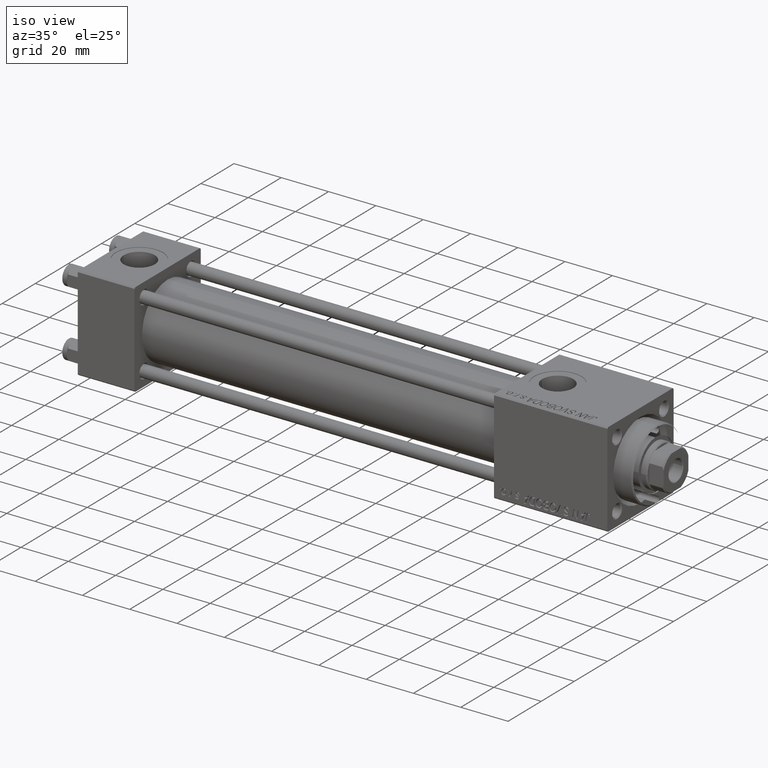
[diagram: clean part render]
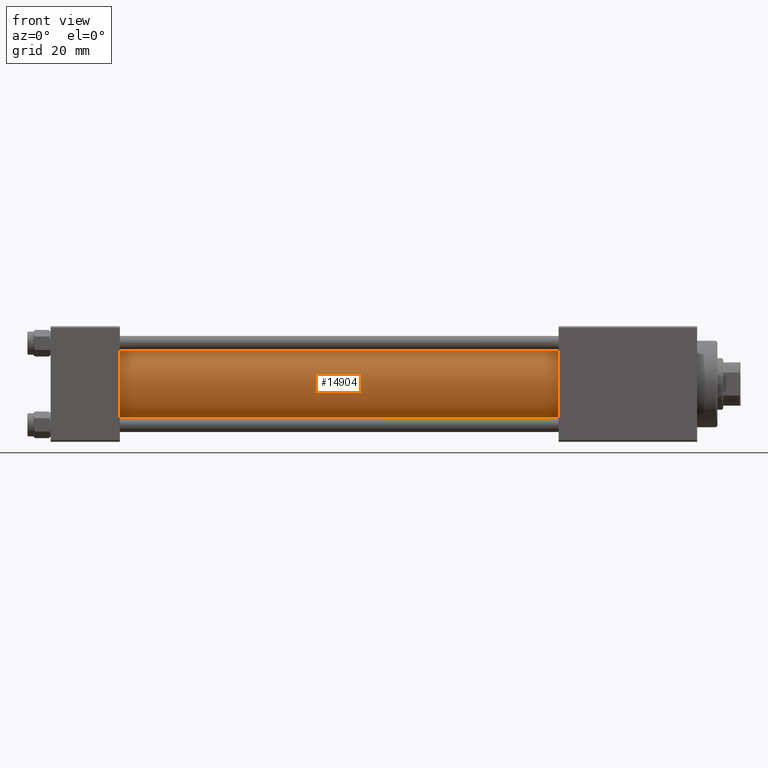
[diagram: tour spotlight — one face highlighted and labeled with its STEP entity id]
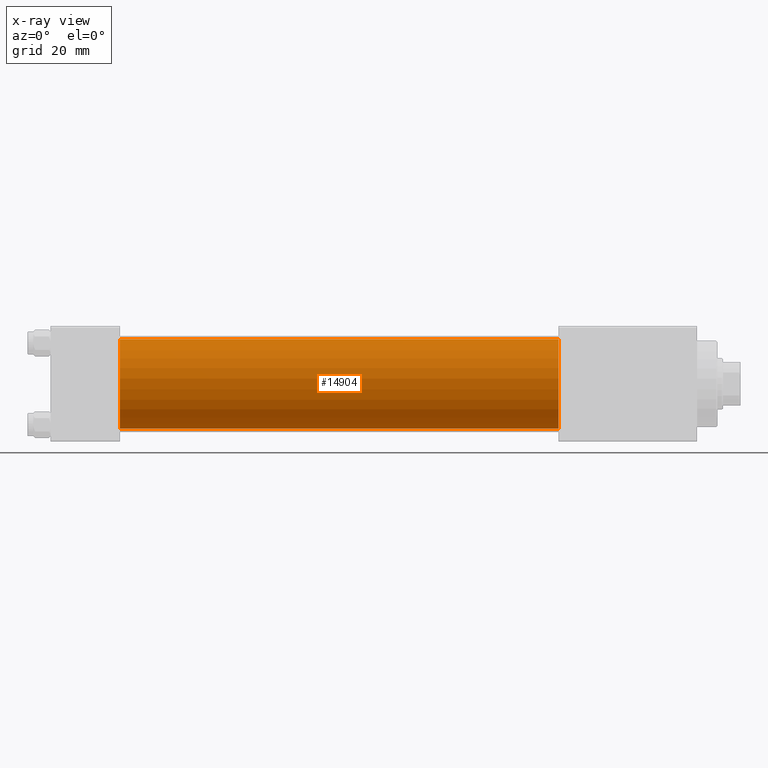
[diagram: x-ray of the same camera — body ghosted, this tour face saturated]
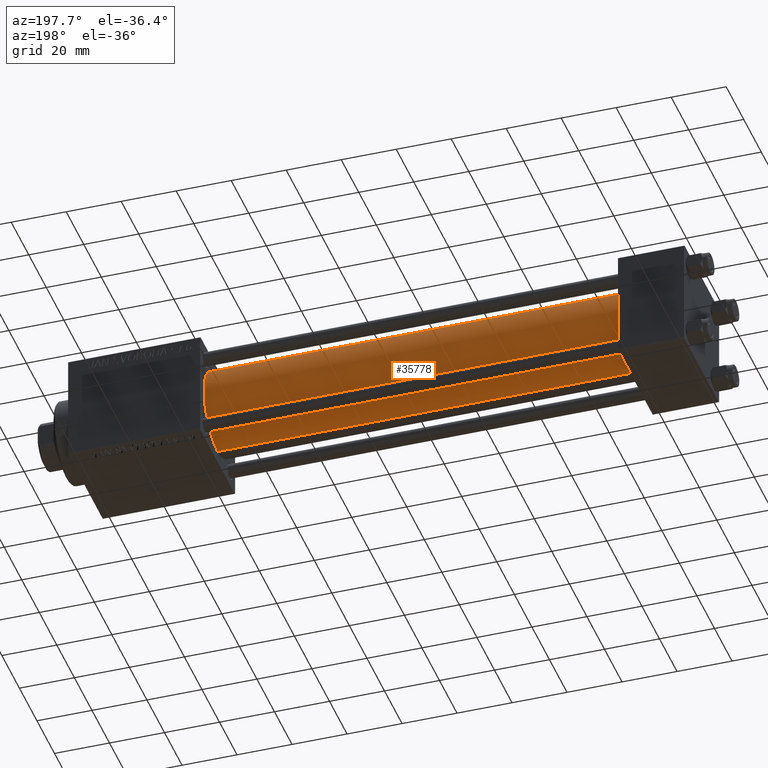
[diagram: tour spotlight — one face highlighted and labeled with its STEP entity id]
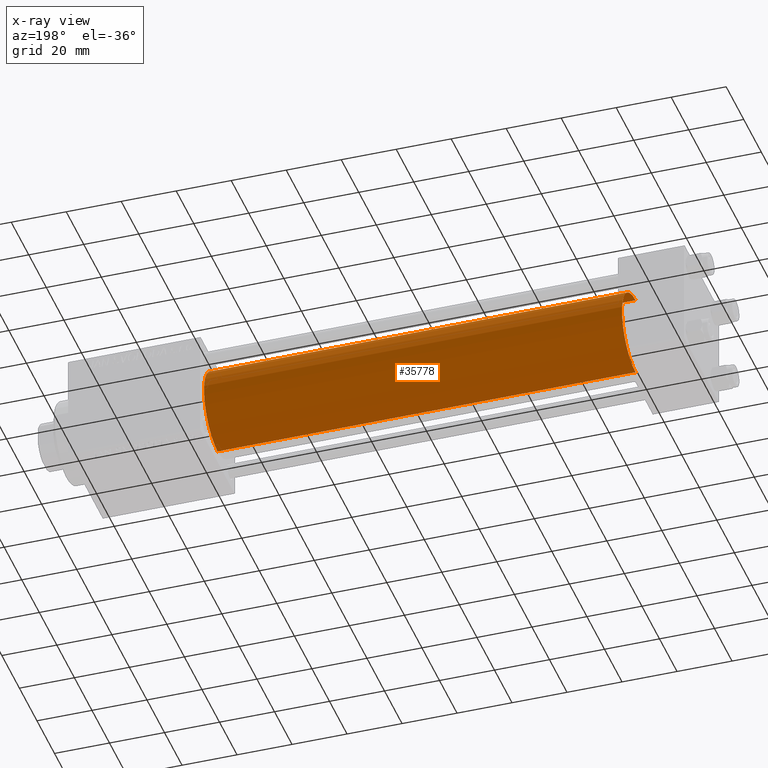
[diagram: x-ray of the same camera — body ghosted, this tour face saturated]
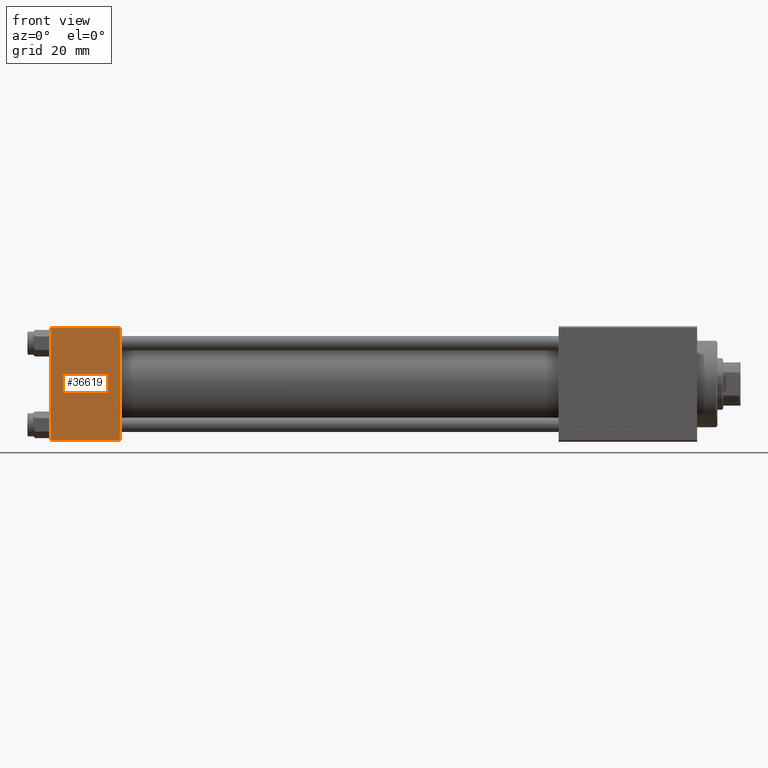
[diagram: tour spotlight — one face highlighted and labeled with its STEP entity id]
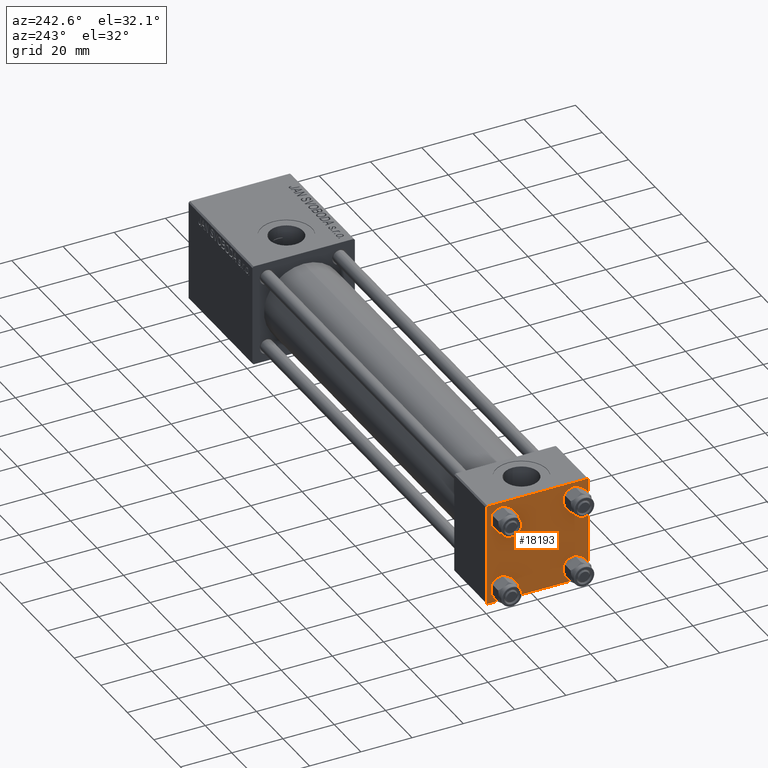
[diagram: tour spotlight — one face highlighted and labeled with its STEP entity id]
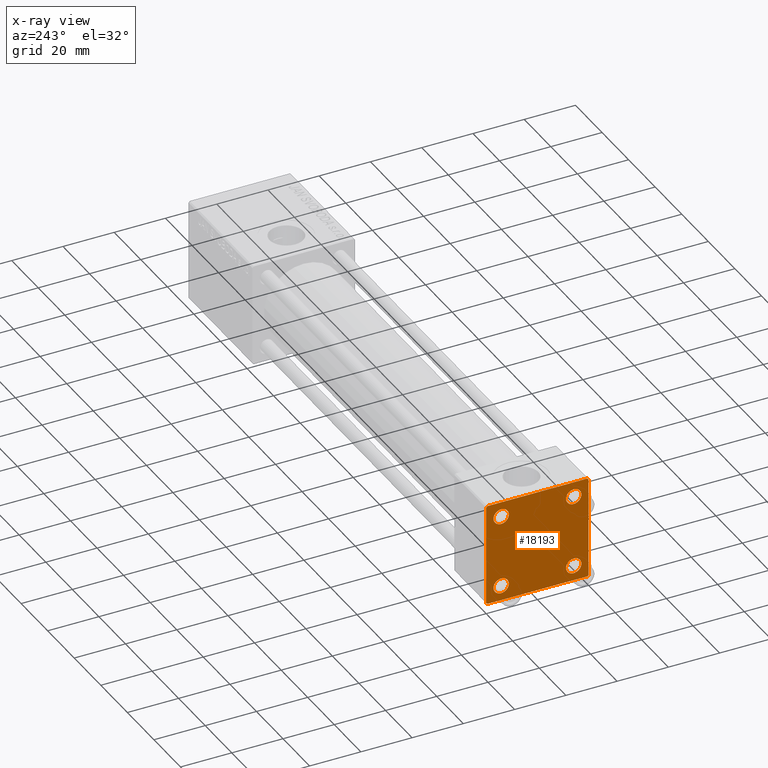
[diagram: x-ray of the same camera — body ghosted, this tour face saturated]
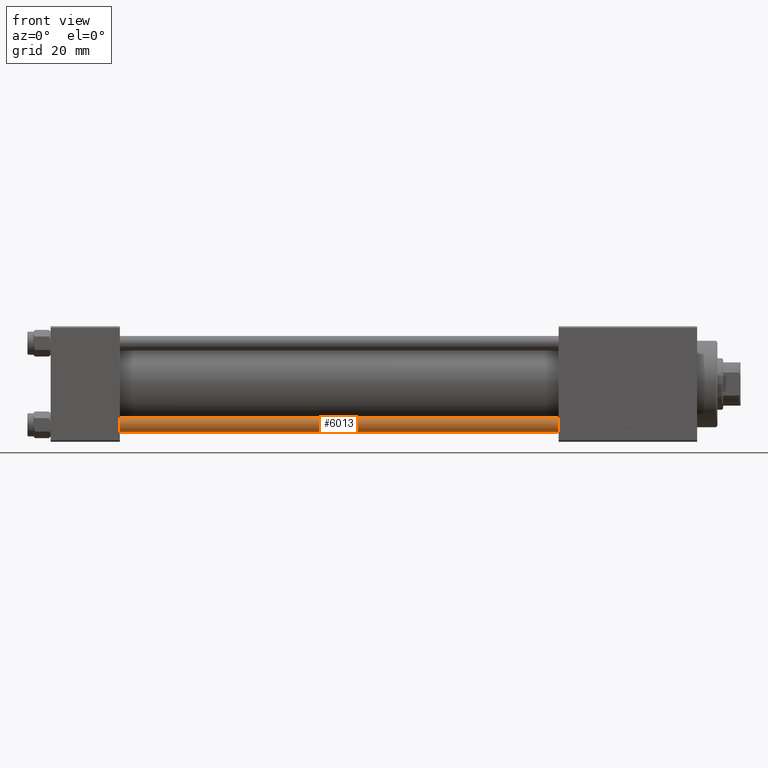
[diagram: tour spotlight — one face highlighted and labeled with its STEP entity id]
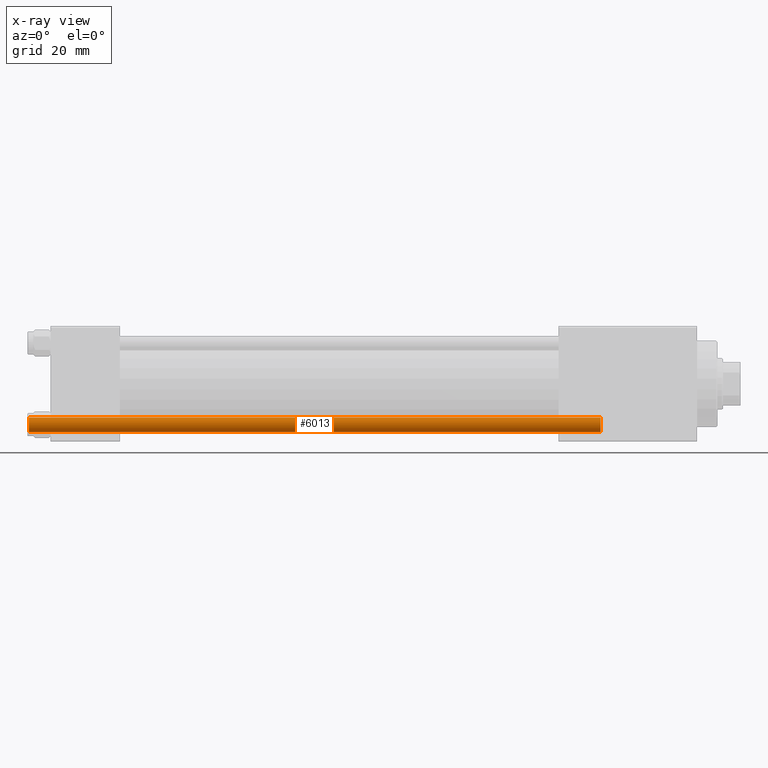
[diagram: x-ray of the same camera — body ghosted, this tour face saturated]
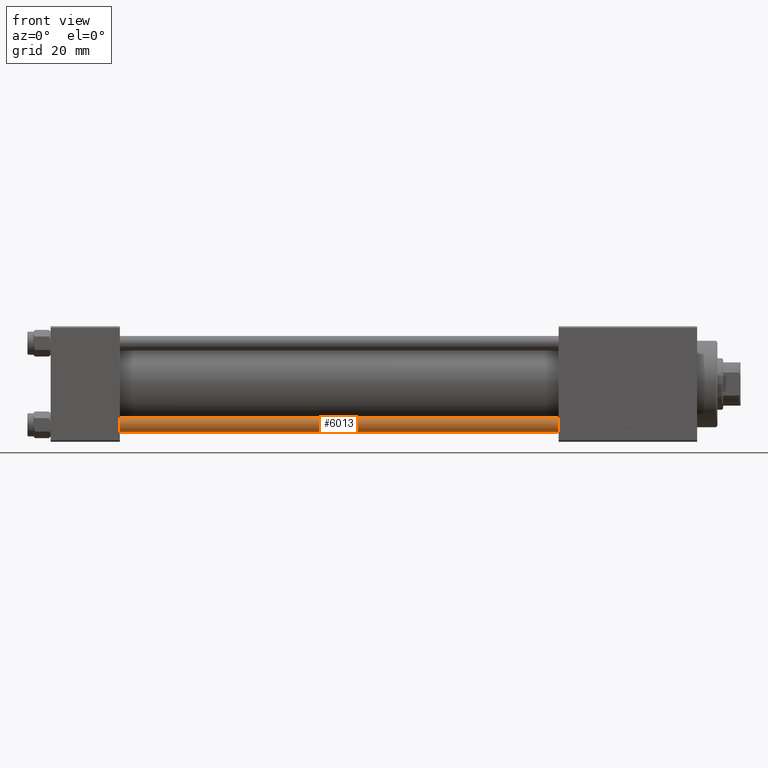
[diagram: tour spotlight — one face highlighted and labeled with its STEP entity id]
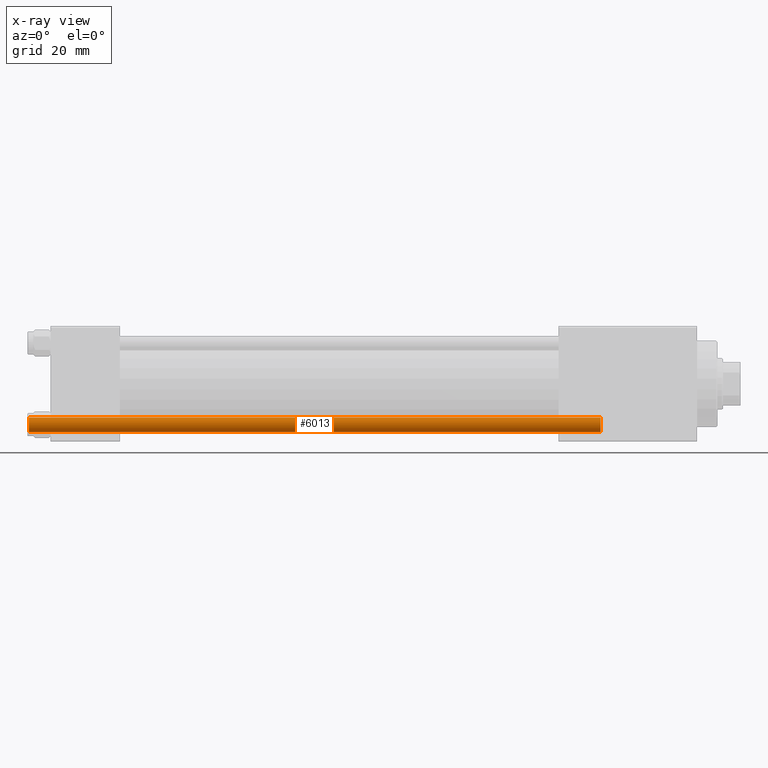
[diagram: x-ray of the same camera — body ghosted, this tour face saturated]
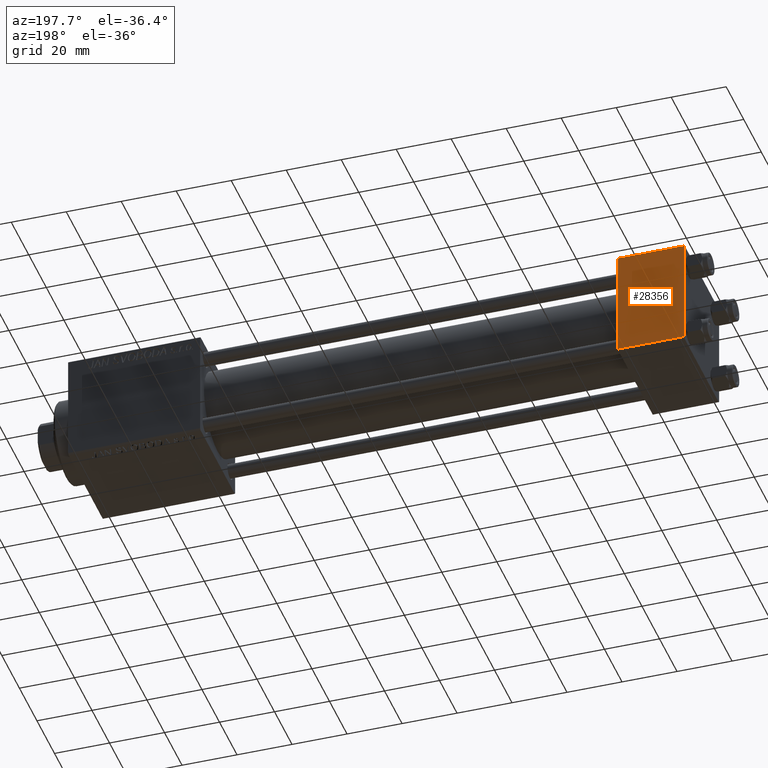
[diagram: tour spotlight — one face highlighted and labeled with its STEP entity id]
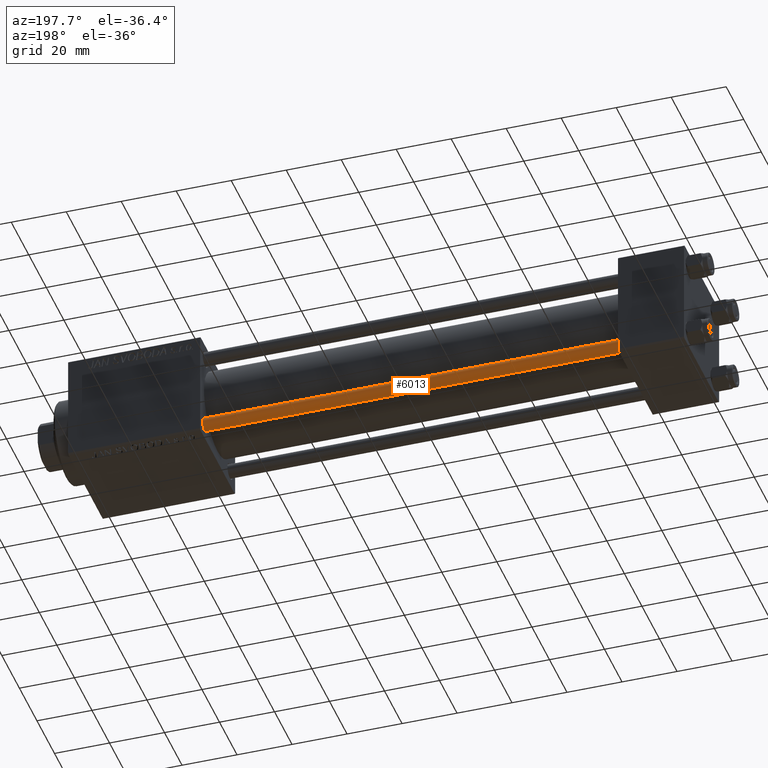
[diagram: tour spotlight — one face highlighted and labeled with its STEP entity id]
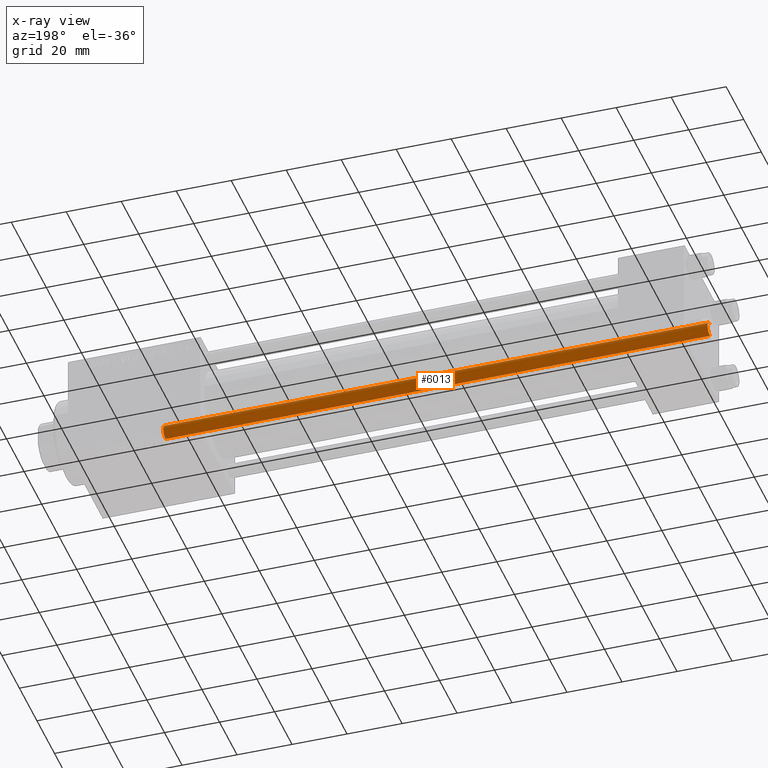
[diagram: x-ray of the same camera — body ghosted, this tour face saturated]
A machine part: a face-by-face anatomy tour. The part has 1150 B-rep faces; the first image is the clean iso view, then the 8 largest visible faces are spotlighted one at a time (largest first), each with its STEP entity span.

Face 1 — front view, entity #14904. An x-ray twin of the same camera follows (body ghosted, this face saturated) — the face is partly hidden behind the body. In plain terms, the highlighted cylindrical surface (partial cylindrical patch) has radius 15.5 mm, axis along (-1, -0, -0).
Definition (entity closure, byte-faithful):
#71 = VECTOR ( 'NONE', #28641, 1000.000000000000000 ) ;
#1972 = LINE ( 'NONE', #13160, #71 ) ;
#2523 = AXIS2_PLACEMENT_3D ( 'NONE', #50137, #49402, #45827 ) ;
#3264 = ORIENTED_EDGE ( 'NONE', *, *, #35896, .T. ) ;
#4370 = DIRECTION ( 'NONE',  ( 0.000000000000000000, 0.000000000000000000, -1.000000000000000000 ) ) ;
#5105 = VERTEX_POINT ( 'NONE', #21171 ) ;
#6144 = EDGE_LOOP ( 'NONE', ( #24814, #25381, #25191, #3264 ) ) ;
#7588 = CARTESIAN_POINT ( 'NONE',  ( 23.99999999999999289, -2.602085213965210642E-15, 0.000000000000000000 ) ) ;
#10615 = LINE ( 'NONE', #26110, #33172 ) ;
#13160 = CARTESIAN_POINT ( 'NONE',  ( 176.0000000000000000, -2.602085213965210642E-15, 15.50000000000000000 ) ) ;
#14904 = ADVANCED_FACE ( 'NONE', ( #38697 ), #30349, .T. ) ;
#16228 = AXIS2_PLACEMENT_3D ( 'NONE', #29434, #20122, #4370 ) ;
#17973 = CIRCLE ( 'NONE', #24449, 15.50000000000000000 ) ;
#20122 = DIRECTION ( 'NONE',  ( 1.000000000000000000, 0.000000000000000000, 0.000000000000000000 ) ) ;
#20661 = VERTEX_POINT ( 'NONE', #27658 ) ;
#20830 = VERTEX_POINT ( 'NONE', #38293 ) ;
#21171 = CARTESIAN_POINT ( 'NONE',  ( 23.99999999999999289, -2.602085213965210642E-15, 15.50000000000000000 ) ) ;
#24449 = AXIS2_PLACEMENT_3D ( 'NONE', #7588, #27646, #31716 ) ;
#24666 = EDGE_CURVE ( 'NONE', #46108, #20661, #10615, .T. ) ;
#24814 = ORIENTED_EDGE ( 'NONE', *, *, #24666, .F. ) ;
#25191 = ORIENTED_EDGE ( 'NONE', *, *, #35176, .T. ) ;
#25381 = ORIENTED_EDGE ( 'NONE', *, *, #27488, .F. ) ;
#26110 = CARTESIAN_POINT ( 'NONE',  ( 176.0000000000000000, -7.038826752868131828E-16, -15.50000000000000000 ) ) ;
#27488 = EDGE_CURVE ( 'NONE', #20830, #46108, #49483, .T. ) ;
#27646 = DIRECTION ( 'NONE',  ( 1.000000000000000000, 0.000000000000000000, 0.000000000000000000 ) ) ;
#27658 = CARTESIAN_POINT ( 'NONE',  ( 23.99999999999999289, -7.038826752868131828E-16, -15.50000000000000000 ) ) ;
#28641 = DIRECTION ( 'NONE',  ( -1.000000000000000000, -0.000000000000000000, -0.000000000000000000 ) ) ;
#29434 = CARTESIAN_POINT ( 'NONE',  ( 176.0000000000000000, -2.602085213965210642E-15, 0.000000000000000000 ) ) ;
#30349 = CYLINDRICAL_SURFACE ( 'NONE', #2523, 15.50000000000000000 ) ;
#31716 = DIRECTION ( 'NONE',  ( 0.000000000000000000, 0.000000000000000000, 1.000000000000000000 ) ) ;
#33172 = VECTOR ( 'NONE', #41605, 1000.000000000000000 ) ;
#35176 = EDGE_CURVE ( 'NONE', #20830, #5105, #1972, .T. ) ;
#35896 = EDGE_CURVE ( 'NONE', #5105, #20661, #17973, .T. ) ;
#38293 = CARTESIAN_POINT ( 'NONE',  ( 176.0000000000000000, -2.602085213965210642E-15, 15.50000000000000000 ) ) ;
#38697 = FACE_OUTER_BOUND ( 'NONE', #6144, .T. ) ;
#41605 = DIRECTION ( 'NONE',  ( -1.000000000000000000, -0.000000000000000000, -0.000000000000000000 ) ) ;
#45827 = DIRECTION ( 'NONE',  ( 0.000000000000000000, 0.000000000000000000, 1.000000000000000000 ) ) ;
#46108 = VERTEX_POINT ( 'NONE', #48113 ) ;
#48113 = CARTESIAN_POINT ( 'NONE',  ( 176.0000000000000000, -7.038826752868131828E-16, -15.50000000000000000 ) ) ;
#49402 = DIRECTION ( 'NONE',  ( -1.000000000000000000, -0.000000000000000000, -0.000000000000000000 ) ) ;
#49483 = CIRCLE ( 'NONE', #16228, 15.50000000000000000 ) ;
#50137 = CARTESIAN_POINT ( 'NONE',  ( 176.0000000000000000, -2.602085213965210642E-15, 0.000000000000000000 ) ) ;

Face 2 — auxiliary view, entity #35778. An x-ray twin of the same camera follows (body ghosted, this face saturated) — the face is partly hidden behind the body. In plain terms, the highlighted cylindrical surface (partial cylindrical patch) has radius 15.5 mm, axis along (-1, -0, -0).
Definition (entity closure, byte-faithful):
#71 = VECTOR ( 'NONE', #28641, 1000.000000000000000 ) ;
#1972 = LINE ( 'NONE', #13160, #71 ) ;
#2260 = ORIENTED_EDGE ( 'NONE', *, *, #24666, .T. ) ;
#3029 = ORIENTED_EDGE ( 'NONE', *, *, #12323, .F. ) ;
#4488 = DIRECTION ( 'NONE',  ( 1.000000000000000000, 0.000000000000000000, 0.000000000000000000 ) ) ;
#4879 = AXIS2_PLACEMENT_3D ( 'NONE', #22043, #45876, #37769 ) ;
#5105 = VERTEX_POINT ( 'NONE', #21171 ) ;
#10539 = CIRCLE ( 'NONE', #4879, 15.50000000000000000 ) ;
#10615 = LINE ( 'NONE', #26110, #33172 ) ;
#12323 = EDGE_CURVE ( 'NONE', #46108, #20830, #10539, .T. ) ;
#13160 = CARTESIAN_POINT ( 'NONE',  ( 176.0000000000000000, -2.602085213965210642E-15, 15.50000000000000000 ) ) ;
#15008 = ORIENTED_EDGE ( 'NONE', *, *, #35176, .F. ) ;
#15470 = EDGE_CURVE ( 'NONE', #20661, #5105, #39034, .T. ) ;
#17035 = CARTESIAN_POINT ( 'NONE',  ( 176.0000000000000000, -2.602085213965210642E-15, 0.000000000000000000 ) ) ;
#20661 = VERTEX_POINT ( 'NONE', #27658 ) ;
#20830 = VERTEX_POINT ( 'NONE', #38293 ) ;
#20850 = CYLINDRICAL_SURFACE ( 'NONE', #29352, 15.50000000000000000 ) ;
#21171 = CARTESIAN_POINT ( 'NONE',  ( 23.99999999999999289, -2.602085213965210642E-15, 15.50000000000000000 ) ) ;
#22043 = CARTESIAN_POINT ( 'NONE',  ( 176.0000000000000000, -2.602085213965210642E-15, 0.000000000000000000 ) ) ;
#23904 = ORIENTED_EDGE ( 'NONE', *, *, #15470, .T. ) ;
#24666 = EDGE_CURVE ( 'NONE', #46108, #20661, #10615, .T. ) ;
#25331 = EDGE_LOOP ( 'NONE', ( #3029, #2260, #23904, #15008 ) ) ;
#26110 = CARTESIAN_POINT ( 'NONE',  ( 176.0000000000000000, -7.038826752868131828E-16, -15.50000000000000000 ) ) ;
#27334 = CARTESIAN_POINT ( 'NONE',  ( 23.99999999999999289, -2.602085213965210642E-15, 0.000000000000000000 ) ) ;
#27658 = CARTESIAN_POINT ( 'NONE',  ( 23.99999999999999289, -7.038826752868131828E-16, -15.50000000000000000 ) ) ;
#28641 = DIRECTION ( 'NONE',  ( -1.000000000000000000, -0.000000000000000000, -0.000000000000000000 ) ) ;
#28960 = DIRECTION ( 'NONE',  ( 0.000000000000000000, 0.000000000000000000, 1.000000000000000000 ) ) ;
#29352 = AXIS2_PLACEMENT_3D ( 'NONE', #17035, #37091, #28960 ) ;
#30125 = AXIS2_PLACEMENT_3D ( 'NONE', #27334, #4488, #42836 ) ;
#33035 = FACE_OUTER_BOUND ( 'NONE', #25331, .T. ) ;
#33172 = VECTOR ( 'NONE', #41605, 1000.000000000000000 ) ;
#35176 = EDGE_CURVE ( 'NONE', #20830, #5105, #1972, .T. ) ;
#35778 = ADVANCED_FACE ( 'NONE', ( #33035 ), #20850, .T. ) ;
#37091 = DIRECTION ( 'NONE',  ( -1.000000000000000000, -0.000000000000000000, -0.000000000000000000 ) ) ;
#37769 = DIRECTION ( 'NONE',  ( 0.000000000000000000, 0.000000000000000000, -1.000000000000000000 ) ) ;
#38293 = CARTESIAN_POINT ( 'NONE',  ( 176.0000000000000000, -2.602085213965210642E-15, 15.50000000000000000 ) ) ;
#39034 = CIRCLE ( 'NONE', #30125, 15.50000000000000000 ) ;
#41605 = DIRECTION ( 'NONE',  ( -1.000000000000000000, -0.000000000000000000, -0.000000000000000000 ) ) ;
#42836 = DIRECTION ( 'NONE',  ( 0.000000000000000000, 0.000000000000000000, 1.000000000000000000 ) ) ;
#45876 = DIRECTION ( 'NONE',  ( 1.000000000000000000, 0.000000000000000000, 0.000000000000000000 ) ) ;
#46108 = VERTEX_POINT ( 'NONE', #48113 ) ;
#48113 = CARTESIAN_POINT ( 'NONE',  ( 176.0000000000000000, -7.038826752868131828E-16, -15.50000000000000000 ) ) ;

Face 3 — front view, entity #36619. In plain terms, the highlighted planar face has unit normal (0, 1, 0).
Definition (entity closure, byte-faithful):
#5373 = DIRECTION ( 'NONE',  ( 0.000000000000000000, -8.673617379884036705E-17, 1.000000000000000000 ) ) ;
#5626 = PLANE ( 'NONE',  #31808 ) ;
#5690 = CARTESIAN_POINT ( 'NONE',  ( 0.000000000000000000, -20.00000000000000000, -19.49999999999999645 ) ) ;
#6061 = DIRECTION ( 'NONE',  ( 1.000000000000000000, 0.000000000000000000, 0.000000000000000000 ) ) ;
#11363 = VECTOR ( 'NONE', #6061, 1000.000000000000000 ) ;
#12013 = LINE ( 'NONE', #47314, #13001 ) ;
#13001 = VECTOR ( 'NONE', #27489, 1000.000000000000000 ) ;
#13751 = EDGE_CURVE ( 'NONE', #17339, #23454, #12013, .T. ) ;
#14074 = CARTESIAN_POINT ( 'NONE',  ( 24.00000000000000000, -20.00000000000000355, 19.49999999999998224 ) ) ;
#16617 = VECTOR ( 'NONE', #18076, 1000.000000000000000 ) ;
#17339 = VERTEX_POINT ( 'NONE', #40104 ) ;
#18076 = DIRECTION ( 'NONE',  ( 0.000000000000000000, 8.673617379884036705E-17, -1.000000000000000000 ) ) ;
#19396 = ORIENTED_EDGE ( 'NONE', *, *, #43907, .T. ) ;
#20158 = ORIENTED_EDGE ( 'NONE', *, *, #28021, .T. ) ;
#22876 = LINE ( 'NONE', #37370, #16617 ) ;
#23454 = VERTEX_POINT ( 'NONE', #42068 ) ;
#25240 = DIRECTION ( 'NONE',  ( -1.000000000000000000, 0.000000000000000000, 0.000000000000000000 ) ) ;
#27460 = EDGE_CURVE ( 'NONE', #36371, #23454, #35603, .T. ) ;
#27489 = DIRECTION ( 'NONE',  ( 0.000000000000000000, 8.673617379884036705E-17, -1.000000000000000000 ) ) ;
#28021 = EDGE_CURVE ( 'NONE', #17339, #42292, #41238, .T. ) ;
#31510 = EDGE_LOOP ( 'NONE', ( #19396, #37617, #32560, #20158 ) ) ;
#31630 = VECTOR ( 'NONE', #25240, 1000.000000000000000 ) ;
#31808 = AXIS2_PLACEMENT_3D ( 'NONE', #48553, #41184, #5373 ) ;
#32305 = FACE_OUTER_BOUND ( 'NONE', #31510, .T. ) ;
#32560 = ORIENTED_EDGE ( 'NONE', *, *, #13751, .F. ) ;
#35603 = LINE ( 'NONE', #43469, #11363 ) ;
#36371 = VERTEX_POINT ( 'NONE', #5690 ) ;
#36619 = ADVANCED_FACE ( 'NONE', ( #32305 ), #5626, .F. ) ;
#37370 = CARTESIAN_POINT ( 'NONE',  ( 0.000000000000000000, -20.00000000000000355, 19.99999999999998934 ) ) ;
#37617 = ORIENTED_EDGE ( 'NONE', *, *, #27460, .T. ) ;
#40104 = CARTESIAN_POINT ( 'NONE',  ( 24.00000000000000000, -20.00000000000000355, 19.49999999999998224 ) ) ;
#41184 = DIRECTION ( 'NONE',  ( -0.000000000000000000, 1.000000000000000000, 8.673617379884036705E-17 ) ) ;
#41238 = LINE ( 'NONE', #14074, #31630 ) ;
#42068 = CARTESIAN_POINT ( 'NONE',  ( 24.00000000000000000, -20.00000000000000000, -19.49999999999999645 ) ) ;
#42292 = VERTEX_POINT ( 'NONE', #46404 ) ;
#43469 = CARTESIAN_POINT ( 'NONE',  ( 24.00000000000000000, -20.00000000000000000, -19.49999999999999645 ) ) ;
#43907 = EDGE_CURVE ( 'NONE', #42292, #36371, #22876, .T. ) ;
#46404 = CARTESIAN_POINT ( 'NONE',  ( 0.000000000000000000, -20.00000000000000355, 19.49999999999998224 ) ) ;
#47314 = CARTESIAN_POINT ( 'NONE',  ( 24.00000000000000000, -20.00000000000000355, 19.99999999999998934 ) ) ;
#48553 = CARTESIAN_POINT ( 'NONE',  ( 24.00000000000000000, -20.00000000000000355, 19.99999999999998934 ) ) ;

Face 4 — auxiliary view, entity #18193. An x-ray twin of the same camera follows (body ghosted, this face saturated) — the face is partly hidden behind the body. In plain terms, the highlighted planar face has unit normal (-1, 0, 0).
Definition (entity closure, byte-faithful):
#158 = DIRECTION ( 'NONE',  ( 0.000000000000000000, 0.000000000000000000, 1.000000000000000000 ) ) ;
#956 = CARTESIAN_POINT ( 'NONE',  ( -0.000000000000000000, -19.74999999999992539, 19.75000000000006395 ) ) ;
#1743 = DIRECTION ( 'NONE',  ( 1.000000000000000000, 0.000000000000000000, 0.000000000000000000 ) ) ;
#1750 = DIRECTION ( 'NONE',  ( 1.000000000000000000, 0.000000000000000000, 0.000000000000000000 ) ) ;
#1858 = CARTESIAN_POINT ( 'NONE',  ( 0.000000000000000000, 19.50000000000000711, -20.00000000000000711 ) ) ;
#2263 = AXIS2_PLACEMENT_3D ( 'NONE', #39011, #19472, #158 ) ;
#2529 = LINE ( 'NONE', #18034, #40555 ) ;
#2765 = VECTOR ( 'NONE', #38514, 1000.000000000000000 ) ;
#3853 = AXIS2_PLACEMENT_3D ( 'NONE', #5560, #1750, #28914 ) ;
#3869 = EDGE_LOOP ( 'NONE', ( #17731, #7730 ) ) ;
#3876 = VERTEX_POINT ( 'NONE', #15052 ) ;
#4063 = VECTOR ( 'NONE', #20139, 1000.000000000000000 ) ;
#4634 = CARTESIAN_POINT ( 'NONE',  ( -0.000000000000000000, 19.74999999999986855, -19.75000000000014211 ) ) ;
#5071 = FACE_BOUND ( 'NONE', #23179, .T. ) ;
#5136 = DIRECTION ( 'NONE',  ( 1.000000000000000000, 0.000000000000000000, 0.000000000000000000 ) ) ;
#5286 = VERTEX_POINT ( 'NONE', #42199 ) ;
#5326 = DIRECTION ( 'NONE',  ( 0.000000000000000000, 0.000000000000000000, -1.000000000000000000 ) ) ;
#5351 = DIRECTION ( 'NONE',  ( 0.000000000000000000, 0.000000000000000000, 1.000000000000000000 ) ) ;
#5560 = CARTESIAN_POINT ( 'NONE',  ( 0.000000000000000000, -14.14999999999999503, 14.15000000000000391 ) ) ;
#5690 = CARTESIAN_POINT ( 'NONE',  ( 0.000000000000000000, -20.00000000000000000, -19.49999999999999645 ) ) ;
#5823 = DIRECTION ( 'NONE',  ( -1.000000000000000000, 0.000000000000000000, -0.000000000000000000 ) ) ;
#5843 = DIRECTION ( 'NONE',  ( 0.000000000000000000, -1.000000000000000000, 1.734723475976807094E-16 ) ) ;
#6324 = ORIENTED_EDGE ( 'NONE', *, *, #34847, .T. ) ;
#6966 = EDGE_CURVE ( 'NONE', #3876, #13450, #19279, .T. ) ;
#7640 = ORIENTED_EDGE ( 'NONE', *, *, #43907, .F. ) ;
#7730 = ORIENTED_EDGE ( 'NONE', *, *, #6966, .T. ) ;
#9126 = VERTEX_POINT ( 'NONE', #44110 ) ;
#9584 = CIRCLE ( 'NONE', #48537, 2.999999999999983569 ) ;
#9794 = CARTESIAN_POINT ( 'NONE',  ( 0.000000000000000000, -19.50000000000000711, -20.00000000000000000 ) ) ;
#10630 = VECTOR ( 'NONE', #5843, 1000.000000000000000 ) ;
#11902 = VERTEX_POINT ( 'NONE', #13720 ) ;
#12705 = AXIS2_PLACEMENT_3D ( 'NONE', #40334, #1743, #28907 ) ;
#12758 = LINE ( 'NONE', #4634, #4063 ) ;
#13447 = CARTESIAN_POINT ( 'NONE',  ( 0.000000000000000000, 0.000000000000000000, 0.000000000000000000 ) ) ;
#13450 = VERTEX_POINT ( 'NONE', #38273 ) ;
#13720 = CARTESIAN_POINT ( 'NONE',  ( 0.000000000000000000, 14.14999999999999858, 11.15000000000001990 ) ) ;
#13823 = EDGE_CURVE ( 'NONE', #49073, #41927, #12758, .T. ) ;
#14159 = ORIENTED_EDGE ( 'NONE', *, *, #19783, .T. ) ;
#14596 = DIRECTION ( 'NONE',  ( 1.000000000000000000, 0.000000000000000000, 0.000000000000000000 ) ) ;
#15052 = CARTESIAN_POINT ( 'NONE',  ( 0.000000000000000000, -14.14999999999999503, 11.15000000000002345 ) ) ;
#15093 = CARTESIAN_POINT ( 'NONE',  ( 0.000000000000000000, -14.14999999999999503, -14.15000000000000391 ) ) ;
#15702 = DIRECTION ( 'NONE',  ( -0.000000000000000000, 0.7071067811865500152, 0.7071067811865451302 ) ) ;
#15792 = CARTESIAN_POINT ( 'NONE',  ( 0.000000000000000000, -14.14999999999999503, -17.15000000000000924 ) ) ;
#16538 = CARTESIAN_POINT ( 'NONE',  ( 0.000000000000000000, -14.14999999999999503, -14.15000000000000391 ) ) ;
#16617 = VECTOR ( 'NONE', #18076, 1000.000000000000000 ) ;
#16764 = LINE ( 'NONE', #20835, #10630 ) ;
#17500 = VERTEX_POINT ( 'NONE', #49001 ) ;
#17731 = ORIENTED_EDGE ( 'NONE', *, *, #43847, .T. ) ;
#17758 = PLANE ( 'NONE',  #44896 ) ;
#18034 = CARTESIAN_POINT ( 'NONE',  ( 0.000000000000000000, -19.75000000000020961, -19.74999999999979394 ) ) ;
#18076 = DIRECTION ( 'NONE',  ( 0.000000000000000000, 8.673617379884036705E-17, -1.000000000000000000 ) ) ;
#18193 = ADVANCED_FACE ( 'NONE', ( #33251, #44931, #5071, #21329, #20569 ), #17758, .T. ) ;
#18732 = LINE ( 'NONE', #50204, #2765 ) ;
#19152 = CARTESIAN_POINT ( 'NONE',  ( 0.000000000000000000, 14.14999999999999858, 14.15000000000000036 ) ) ;
#19279 = CIRCLE ( 'NONE', #3853, 2.999999999999983569 ) ;
#19472 = DIRECTION ( 'NONE',  ( 1.000000000000000000, 0.000000000000000000, 0.000000000000000000 ) ) ;
#19711 = CARTESIAN_POINT ( 'NONE',  ( 0.000000000000000000, 14.14999999999999858, -14.15000000000000036 ) ) ;
#19783 = EDGE_CURVE ( 'NONE', #11902, #34125, #28108, .T. ) ;
#19915 = DIRECTION ( 'NONE',  ( 0.000000000000000000, 0.000000000000000000, 1.000000000000000000 ) ) ;
#20139 = DIRECTION ( 'NONE',  ( -0.000000000000000000, -0.7071067811865524577, -0.7071067811865426878 ) ) ;
#20569 = FACE_OUTER_BOUND ( 'NONE', #35424, .T. ) ;
#20630 = DIRECTION ( 'NONE',  ( 0.000000000000000000, 0.000000000000000000, 1.000000000000000000 ) ) ;
#20835 = CARTESIAN_POINT ( 'NONE',  ( 0.000000000000000000, 20.00000000000000000, -20.00000000000000711 ) ) ;
#20969 = ORIENTED_EDGE ( 'NONE', *, *, #29884, .T. ) ;
#21329 = FACE_BOUND ( 'NONE', #22623, .T. ) ;
#22320 = CIRCLE ( 'NONE', #33662, 2.999999999999983569 ) ;
#22623 = EDGE_LOOP ( 'NONE', ( #27358, #14159 ) ) ;
#22805 = EDGE_CURVE ( 'NONE', #34125, #11902, #9584, .T. ) ;
#22876 = LINE ( 'NONE', #37370, #16617 ) ;
#23179 = EDGE_LOOP ( 'NONE', ( #24595, #33277 ) ) ;
#23450 = EDGE_CURVE ( 'NONE', #27613, #17500, #30659, .T. ) ;
#24595 = ORIENTED_EDGE ( 'NONE', *, *, #23450, .T. ) ;
#26188 = VERTEX_POINT ( 'NONE', #15792 ) ;
#26271 = DIRECTION ( 'NONE',  ( 0.000000000000000000, 0.000000000000000000, 1.000000000000000000 ) ) ;
#26685 = CARTESIAN_POINT ( 'NONE',  ( 0.000000000000000000, -14.14999999999999503, -11.15000000000000036 ) ) ;
#27008 = AXIS2_PLACEMENT_3D ( 'NONE', #19711, #27824, #35188 ) ;
#27358 = ORIENTED_EDGE ( 'NONE', *, *, #22805, .T. ) ;
#27449 = VERTEX_POINT ( 'NONE', #47533 ) ;
#27613 = VERTEX_POINT ( 'NONE', #46412 ) ;
#27824 = DIRECTION ( 'NONE',  ( 1.000000000000000000, 0.000000000000000000, 0.000000000000000000 ) ) ;
#28108 = CIRCLE ( 'NONE', #12705, 2.999999999999983569 ) ;
#28374 = EDGE_CURVE ( 'NONE', #30340, #36371, #2529, .T. ) ;
#28423 = DIRECTION ( 'NONE',  ( -0.000000000000000000, 0.000000000000000000, 1.000000000000000000 ) ) ;
#28691 = CARTESIAN_POINT ( 'NONE',  ( 0.000000000000000000, 20.00000000000000000, 20.00000000000000000 ) ) ;
#28907 = DIRECTION ( 'NONE',  ( 0.000000000000000000, 0.000000000000000000, 1.000000000000000000 ) ) ;
#28914 = DIRECTION ( 'NONE',  ( 0.000000000000000000, 0.000000000000000000, 1.000000000000000000 ) ) ;
#29318 = ORIENTED_EDGE ( 'NONE', *, *, #41675, .F. ) ;
#29884 = EDGE_CURVE ( 'NONE', #26188, #31241, #32499, .T. ) ;
#30340 = VERTEX_POINT ( 'NONE', #9794 ) ;
#30659 = CIRCLE ( 'NONE', #2263, 2.999999999999983569 ) ;
#30835 = EDGE_CURVE ( 'NONE', #42292, #27449, #35748, .T. ) ;
#31117 = EDGE_CURVE ( 'NONE', #9126, #5286, #38248, .T. ) ;
#31241 = VERTEX_POINT ( 'NONE', #26685 ) ;
#32499 = CIRCLE ( 'NONE', #48750, 3.000000000000004441 ) ;
#32764 = LINE ( 'NONE', #28691, #41531 ) ;
#32770 = DIRECTION ( 'NONE',  ( 0.000000000000000000, -0.7071067811865401342, 0.7071067811865549002 ) ) ;
#32837 = ORIENTED_EDGE ( 'NONE', *, *, #30835, .T. ) ;
#33251 = FACE_BOUND ( 'NONE', #3869, .T. ) ;
#33277 = ORIENTED_EDGE ( 'NONE', *, *, #39554, .T. ) ;
#33515 = CARTESIAN_POINT ( 'NONE',  ( 0.000000000000000000, 14.14999999999999858, 17.14999999999998437 ) ) ;
#33662 = AXIS2_PLACEMENT_3D ( 'NONE', #43733, #5136, #20630 ) ;
#34125 = VERTEX_POINT ( 'NONE', #33515 ) ;
#34847 = EDGE_CURVE ( 'NONE', #41927, #30340, #16764, .T. ) ;
#35188 = DIRECTION ( 'NONE',  ( 0.000000000000000000, 0.000000000000000000, 1.000000000000000000 ) ) ;
#35424 = EDGE_LOOP ( 'NONE', ( #47739, #37516, #6324, #44814, #7640, #32837, #29318, #39113 ) ) ;
#35748 = LINE ( 'NONE', #956, #38183 ) ;
#36371 = VERTEX_POINT ( 'NONE', #5690 ) ;
#37370 = CARTESIAN_POINT ( 'NONE',  ( 0.000000000000000000, -20.00000000000000355, 19.99999999999998934 ) ) ;
#37373 = EDGE_CURVE ( 'NONE', #5286, #49073, #32764, .T. ) ;
#37516 = ORIENTED_EDGE ( 'NONE', *, *, #13823, .T. ) ;
#38183 = VECTOR ( 'NONE', #15702, 1000.000000000000114 ) ;
#38248 = LINE ( 'NONE', #45378, #39022 ) ;
#38273 = CARTESIAN_POINT ( 'NONE',  ( 0.000000000000000000, -14.14999999999999503, 17.14999999999998792 ) ) ;
#38514 = DIRECTION ( 'NONE',  ( 0.000000000000000000, -1.000000000000000000, -2.602085213965210149E-16 ) ) ;
#39011 = CARTESIAN_POINT ( 'NONE',  ( 0.000000000000000000, 14.14999999999999858, -14.15000000000000036 ) ) ;
#39022 = VECTOR ( 'NONE', #41811, 999.9999999999998863 ) ;
#39113 = ORIENTED_EDGE ( 'NONE', *, *, #31117, .T. ) ;
#39447 = DIRECTION ( 'NONE',  ( 1.000000000000000000, 0.000000000000000000, 0.000000000000000000 ) ) ;
#39554 = EDGE_CURVE ( 'NONE', #17500, #27613, #48941, .T. ) ;
#40334 = CARTESIAN_POINT ( 'NONE',  ( 0.000000000000000000, 14.14999999999999858, 14.15000000000000036 ) ) ;
#40555 = VECTOR ( 'NONE', #32770, 1000.000000000000000 ) ;
#41531 = VECTOR ( 'NONE', #5326, 1000.000000000000000 ) ;
#41675 = EDGE_CURVE ( 'NONE', #9126, #27449, #18732, .T. ) ;
#41811 = DIRECTION ( 'NONE',  ( 0.000000000000000000, 0.7071067811865425767, -0.7071067811865525687 ) ) ;
#41927 = VERTEX_POINT ( 'NONE', #1858 ) ;
#42199 = CARTESIAN_POINT ( 'NONE',  ( 0.000000000000000000, 20.00000000000000000, 19.49999999999999289 ) ) ;
#42259 = CIRCLE ( 'NONE', #43065, 3.000000000000004441 ) ;
#42292 = VERTEX_POINT ( 'NONE', #46404 ) ;
#42357 = ORIENTED_EDGE ( 'NONE', *, *, #49870, .T. ) ;
#43065 = AXIS2_PLACEMENT_3D ( 'NONE', #16538, #48276, #5351 ) ;
#43733 = CARTESIAN_POINT ( 'NONE',  ( 0.000000000000000000, -14.14999999999999503, 14.15000000000000391 ) ) ;
#43847 = EDGE_CURVE ( 'NONE', #13450, #3876, #22320, .T. ) ;
#43907 = EDGE_CURVE ( 'NONE', #42292, #36371, #22876, .T. ) ;
#44110 = CARTESIAN_POINT ( 'NONE',  ( 0.000000000000000000, 19.50000000000000000, 20.00000000000000000 ) ) ;
#44814 = ORIENTED_EDGE ( 'NONE', *, *, #28374, .T. ) ;
#44896 = AXIS2_PLACEMENT_3D ( 'NONE', #13447, #5823, #28423 ) ;
#44931 = FACE_BOUND ( 'NONE', #47272, .T. ) ;
#45378 = CARTESIAN_POINT ( 'NONE',  ( -0.000000000000000000, 19.75000000000013500, 19.74999999999986144 ) ) ;
#46404 = CARTESIAN_POINT ( 'NONE',  ( 0.000000000000000000, -20.00000000000000355, 19.49999999999998224 ) ) ;
#46412 = CARTESIAN_POINT ( 'NONE',  ( 0.000000000000000000, 14.14999999999999858, -11.15000000000001812 ) ) ;
#46448 = CARTESIAN_POINT ( 'NONE',  ( 0.000000000000000000, 20.00000000000000000, -19.50000000000002132 ) ) ;
#47272 = EDGE_LOOP ( 'NONE', ( #42357, #20969 ) ) ;
#47533 = CARTESIAN_POINT ( 'NONE',  ( 0.000000000000000000, -19.49999999999999289, 19.99999999999998934 ) ) ;
#47739 = ORIENTED_EDGE ( 'NONE', *, *, #37373, .T. ) ;
#48276 = DIRECTION ( 'NONE',  ( 1.000000000000000000, 0.000000000000000000, 0.000000000000000000 ) ) ;
#48537 = AXIS2_PLACEMENT_3D ( 'NONE', #19152, #14596, #26271 ) ;
#48750 = AXIS2_PLACEMENT_3D ( 'NONE', #15093, #39447, #19915 ) ;
#48941 = CIRCLE ( 'NONE', #27008, 2.999999999999983569 ) ;
#49001 = CARTESIAN_POINT ( 'NONE',  ( 0.000000000000000000, 14.14999999999999858, -17.14999999999998437 ) ) ;
#49073 = VERTEX_POINT ( 'NONE', #46448 ) ;
#49870 = EDGE_CURVE ( 'NONE', #31241, #26188, #42259, .T. ) ;
#50204 = CARTESIAN_POINT ( 'NONE',  ( 0.000000000000000000, 20.00000000000000000, 20.00000000000000000 ) ) ;

Face 5 — front view, entity #6013. An x-ray twin of the same camera follows (body ghosted, this face saturated) — the face is partly hidden behind the body. In plain terms, the highlighted cylindrical surface (edge-blend (fillet) strip) has radius 2.5 mm, axis along (1, 0, -0).
Definition (entity closure, byte-faithful):
#1295 = CARTESIAN_POINT ( 'NONE',  ( 0.000000000000000000, 0.000000000000000000, 0.5000000000000004441 ) ) ;
#1548 = DIRECTION ( 'NONE',  ( -0.000000000000000000, -0.000000000000000000, 1.000000000000000000 ) ) ;
#2917 = LINE ( 'NONE', #14858, #28982 ) ;
#6013 = ADVANCED_FACE ( 'NONE', ( #14614 ), #15350, .T. ) ;
#8882 = VERTEX_POINT ( 'NONE', #38045 ) ;
#10626 = CIRCLE ( 'NONE', #38169, 2.500000000000000000 ) ;
#11288 = CARTESIAN_POINT ( 'NONE',  ( -2.500000000000000000, 0.000000000000000000, 0.5000000000000004441 ) ) ;
#11291 = DIRECTION ( 'NONE',  ( -0.000000000000000000, -0.000000000000000000, -1.000000000000000000 ) ) ;
#11540 = DIRECTION ( 'NONE',  ( -0.000000000000000000, -0.000000000000000000, -1.000000000000000000 ) ) ;
#12449 = CIRCLE ( 'NONE', #18946, 2.500000000000000000 ) ;
#14614 = FACE_OUTER_BOUND ( 'NONE', #43176, .T. ) ;
#14858 = CARTESIAN_POINT ( 'NONE',  ( -2.500000000000000000, 0.000000000000000000, 199.0000000000000000 ) ) ;
#15350 = CYLINDRICAL_SURFACE ( 'NONE', #18453, 2.500000000000000000 ) ;
#15749 = VERTEX_POINT ( 'NONE', #11288 ) ;
#17576 = VERTEX_POINT ( 'NONE', #19761 ) ;
#18145 = ORIENTED_EDGE ( 'NONE', *, *, #47743, .F. ) ;
#18453 = AXIS2_PLACEMENT_3D ( 'NONE', #46329, #11540, #41777 ) ;
#18946 = AXIS2_PLACEMENT_3D ( 'NONE', #49147, #42690, #29843 ) ;
#19761 = CARTESIAN_POINT ( 'NONE',  ( 2.500000000000000000, 3.061616997868383141E-16, 0.5000000000000004441 ) ) ;
#20012 = VERTEX_POINT ( 'NONE', #30418 ) ;
#22248 = LINE ( 'NONE', #26045, #43334 ) ;
#24891 = ORIENTED_EDGE ( 'NONE', *, *, #48215, .T. ) ;
#25540 = DIRECTION ( 'NONE',  ( -0.000000000000000000, -0.000000000000000000, -1.000000000000000000 ) ) ;
#26045 = CARTESIAN_POINT ( 'NONE',  ( 2.500000000000000000, 3.061616997868383141E-16, 199.0000000000000000 ) ) ;
#28982 = VECTOR ( 'NONE', #25540, 1000.000000000000000 ) ;
#29843 = DIRECTION ( 'NONE',  ( 1.000000000000000000, 0.000000000000000000, 0.000000000000000000 ) ) ;
#30418 = CARTESIAN_POINT ( 'NONE',  ( -2.500000000000000000, 0.000000000000000000, 198.5000000000000284 ) ) ;
#33862 = ORIENTED_EDGE ( 'NONE', *, *, #42677, .T. ) ;
#38045 = CARTESIAN_POINT ( 'NONE',  ( 2.500000000000000000, 3.061616997868383141E-16, 198.5000000000000284 ) ) ;
#38169 = AXIS2_PLACEMENT_3D ( 'NONE', #1295, #1548, #48035 ) ;
#41117 = EDGE_CURVE ( 'NONE', #20012, #8882, #12449, .T. ) ;
#41777 = DIRECTION ( 'NONE',  ( -1.000000000000000000, 0.000000000000000000, 0.000000000000000000 ) ) ;
#42677 = EDGE_CURVE ( 'NONE', #8882, #17576, #22248, .T. ) ;
#42690 = DIRECTION ( 'NONE',  ( 0.000000000000000000, 0.000000000000000000, -1.000000000000000000 ) ) ;
#43176 = EDGE_LOOP ( 'NONE', ( #48825, #33862, #24891, #18145 ) ) ;
#43334 = VECTOR ( 'NONE', #11291, 1000.000000000000000 ) ;
#46329 = CARTESIAN_POINT ( 'NONE',  ( 0.000000000000000000, 0.000000000000000000, 199.0000000000000000 ) ) ;
#47743 = EDGE_CURVE ( 'NONE', #20012, #15749, #2917, .T. ) ;
#48035 = DIRECTION ( 'NONE',  ( 1.000000000000000000, 0.000000000000000000, 0.000000000000000000 ) ) ;
#48215 = EDGE_CURVE ( 'NONE', #17576, #15749, #10626, .T. ) ;
#48825 = ORIENTED_EDGE ( 'NONE', *, *, #41117, .T. ) ;
#49147 = CARTESIAN_POINT ( 'NONE',  ( 0.000000000000000000, 0.000000000000000000, 198.5000000000000284 ) ) ;

Face 6 — front view, entity #6013. An x-ray twin of the same camera follows (body ghosted, this face saturated) — the face is partly hidden behind the body. In plain terms, the highlighted cylindrical surface (edge-blend (fillet) strip) has radius 2.5 mm, axis along (-1, -0, -0).
Definition (entity closure, byte-faithful):
#1295 = CARTESIAN_POINT ( 'NONE',  ( 0.000000000000000000, 0.000000000000000000, 0.5000000000000004441 ) ) ;
#1548 = DIRECTION ( 'NONE',  ( -0.000000000000000000, -0.000000000000000000, 1.000000000000000000 ) ) ;
#2917 = LINE ( 'NONE', #14858, #28982 ) ;
#6013 = ADVANCED_FACE ( 'NONE', ( #14614 ), #15350, .T. ) ;
#8882 = VERTEX_POINT ( 'NONE', #38045 ) ;
#10626 = CIRCLE ( 'NONE', #38169, 2.500000000000000000 ) ;
#11288 = CARTESIAN_POINT ( 'NONE',  ( -2.500000000000000000, 0.000000000000000000, 0.5000000000000004441 ) ) ;
#11291 = DIRECTION ( 'NONE',  ( -0.000000000000000000, -0.000000000000000000, -1.000000000000000000 ) ) ;
#11540 = DIRECTION ( 'NONE',  ( -0.000000000000000000, -0.000000000000000000, -1.000000000000000000 ) ) ;
#12449 = CIRCLE ( 'NONE', #18946, 2.500000000000000000 ) ;
#14614 = FACE_OUTER_BOUND ( 'NONE', #43176, .T. ) ;
#14858 = CARTESIAN_POINT ( 'NONE',  ( -2.500000000000000000, 0.000000000000000000, 199.0000000000000000 ) ) ;
#15350 = CYLINDRICAL_SURFACE ( 'NONE', #18453, 2.500000000000000000 ) ;
#15749 = VERTEX_POINT ( 'NONE', #11288 ) ;
#17576 = VERTEX_POINT ( 'NONE', #19761 ) ;
#18145 = ORIENTED_EDGE ( 'NONE', *, *, #47743, .F. ) ;
#18453 = AXIS2_PLACEMENT_3D ( 'NONE', #46329, #11540, #41777 ) ;
#18946 = AXIS2_PLACEMENT_3D ( 'NONE', #49147, #42690, #29843 ) ;
#19761 = CARTESIAN_POINT ( 'NONE',  ( 2.500000000000000000, 3.061616997868383141E-16, 0.5000000000000004441 ) ) ;
#20012 = VERTEX_POINT ( 'NONE', #30418 ) ;
#22248 = LINE ( 'NONE', #26045, #43334 ) ;
#24891 = ORIENTED_EDGE ( 'NONE', *, *, #48215, .T. ) ;
#25540 = DIRECTION ( 'NONE',  ( -0.000000000000000000, -0.000000000000000000, -1.000000000000000000 ) ) ;
#26045 = CARTESIAN_POINT ( 'NONE',  ( 2.500000000000000000, 3.061616997868383141E-16, 199.0000000000000000 ) ) ;
#28982 = VECTOR ( 'NONE', #25540, 1000.000000000000000 ) ;
#29843 = DIRECTION ( 'NONE',  ( 1.000000000000000000, 0.000000000000000000, 0.000000000000000000 ) ) ;
#30418 = CARTESIAN_POINT ( 'NONE',  ( -2.500000000000000000, 0.000000000000000000, 198.5000000000000284 ) ) ;
#33862 = ORIENTED_EDGE ( 'NONE', *, *, #42677, .T. ) ;
#38045 = CARTESIAN_POINT ( 'NONE',  ( 2.500000000000000000, 3.061616997868383141E-16, 198.5000000000000284 ) ) ;
#38169 = AXIS2_PLACEMENT_3D ( 'NONE', #1295, #1548, #48035 ) ;
#41117 = EDGE_CURVE ( 'NONE', #20012, #8882, #12449, .T. ) ;
#41777 = DIRECTION ( 'NONE',  ( -1.000000000000000000, 0.000000000000000000, 0.000000000000000000 ) ) ;
#42677 = EDGE_CURVE ( 'NONE', #8882, #17576, #22248, .T. ) ;
#42690 = DIRECTION ( 'NONE',  ( 0.000000000000000000, 0.000000000000000000, -1.000000000000000000 ) ) ;
#43176 = EDGE_LOOP ( 'NONE', ( #48825, #33862, #24891, #18145 ) ) ;
#43334 = VECTOR ( 'NONE', #11291, 1000.000000000000000 ) ;
#46329 = CARTESIAN_POINT ( 'NONE',  ( 0.000000000000000000, 0.000000000000000000, 199.0000000000000000 ) ) ;
#47743 = EDGE_CURVE ( 'NONE', #20012, #15749, #2917, .T. ) ;
#48035 = DIRECTION ( 'NONE',  ( 1.000000000000000000, 0.000000000000000000, 0.000000000000000000 ) ) ;
#48215 = EDGE_CURVE ( 'NONE', #17576, #15749, #10626, .T. ) ;
#48825 = ORIENTED_EDGE ( 'NONE', *, *, #41117, .T. ) ;
#49147 = CARTESIAN_POINT ( 'NONE',  ( 0.000000000000000000, 0.000000000000000000, 198.5000000000000284 ) ) ;

Face 7 — auxiliary view, entity #28356. In plain terms, the highlighted planar face has unit normal (0, 1, 0).
Definition (entity closure, byte-faithful):
#513 = DIRECTION ( 'NONE',  ( -0.000000000000000000, 1.000000000000000000, 0.000000000000000000 ) ) ;
#565 = CARTESIAN_POINT ( 'NONE',  ( 24.00000000000000000, 20.00000000000000000, -19.50000000000002132 ) ) ;
#1267 = ORIENTED_EDGE ( 'NONE', *, *, #47251, .T. ) ;
#1869 = CARTESIAN_POINT ( 'NONE',  ( 24.00000000000000000, 20.00000000000000000, 19.49999999999999289 ) ) ;
#4516 = VERTEX_POINT ( 'NONE', #40225 ) ;
#4581 = PLANE ( 'NONE',  #35686 ) ;
#5286 = VERTEX_POINT ( 'NONE', #42199 ) ;
#5326 = DIRECTION ( 'NONE',  ( 0.000000000000000000, 0.000000000000000000, -1.000000000000000000 ) ) ;
#6159 = LINE ( 'NONE', #36900, #38694 ) ;
#11998 = VECTOR ( 'NONE', #19444, 1000.000000000000000 ) ;
#12806 = DIRECTION ( 'NONE',  ( 1.000000000000000000, 0.000000000000000000, 0.000000000000000000 ) ) ;
#18641 = EDGE_CURVE ( 'NONE', #33694, #49073, #42792, .T. ) ;
#19444 = DIRECTION ( 'NONE',  ( -1.000000000000000000, 0.000000000000000000, 0.000000000000000000 ) ) ;
#19573 = ORIENTED_EDGE ( 'NONE', *, *, #37373, .F. ) ;
#23638 = CARTESIAN_POINT ( 'NONE',  ( 24.00000000000000000, 20.00000000000000000, 20.00000000000000000 ) ) ;
#24268 = EDGE_LOOP ( 'NONE', ( #1267, #45062, #19573, #29511 ) ) ;
#24408 = VECTOR ( 'NONE', #12806, 1000.000000000000000 ) ;
#28356 = ADVANCED_FACE ( 'NONE', ( #43190 ), #4581, .T. ) ;
#28691 = CARTESIAN_POINT ( 'NONE',  ( 0.000000000000000000, 20.00000000000000000, 20.00000000000000000 ) ) ;
#29511 = ORIENTED_EDGE ( 'NONE', *, *, #48677, .T. ) ;
#31370 = CARTESIAN_POINT ( 'NONE',  ( 24.00000000000000000, 20.00000000000000000, -19.50000000000002132 ) ) ;
#32764 = LINE ( 'NONE', #28691, #41531 ) ;
#33694 = VERTEX_POINT ( 'NONE', #565 ) ;
#35686 = AXIS2_PLACEMENT_3D ( 'NONE', #23638, #513, #47261 ) ;
#36900 = CARTESIAN_POINT ( 'NONE',  ( 24.00000000000000000, 20.00000000000000000, 20.00000000000000000 ) ) ;
#37152 = DIRECTION ( 'NONE',  ( 0.000000000000000000, 0.000000000000000000, -1.000000000000000000 ) ) ;
#37373 = EDGE_CURVE ( 'NONE', #5286, #49073, #32764, .T. ) ;
#38694 = VECTOR ( 'NONE', #37152, 1000.000000000000000 ) ;
#40225 = CARTESIAN_POINT ( 'NONE',  ( 24.00000000000000000, 20.00000000000000000, 19.49999999999999289 ) ) ;
#41531 = VECTOR ( 'NONE', #5326, 1000.000000000000000 ) ;
#42199 = CARTESIAN_POINT ( 'NONE',  ( 0.000000000000000000, 20.00000000000000000, 19.49999999999999289 ) ) ;
#42792 = LINE ( 'NONE', #31370, #11998 ) ;
#43190 = FACE_OUTER_BOUND ( 'NONE', #24268, .T. ) ;
#45062 = ORIENTED_EDGE ( 'NONE', *, *, #18641, .T. ) ;
#46448 = CARTESIAN_POINT ( 'NONE',  ( 0.000000000000000000, 20.00000000000000000, -19.50000000000002132 ) ) ;
#47251 = EDGE_CURVE ( 'NONE', #4516, #33694, #6159, .T. ) ;
#47261 = DIRECTION ( 'NONE',  ( 0.000000000000000000, -0.000000000000000000, 1.000000000000000000 ) ) ;
#47356 = LINE ( 'NONE', #1869, #24408 ) ;
#48677 = EDGE_CURVE ( 'NONE', #5286, #4516, #47356, .T. ) ;
#49073 = VERTEX_POINT ( 'NONE', #46448 ) ;

Face 8 — auxiliary view, entity #6013. An x-ray twin of the same camera follows (body ghosted, this face saturated) — the face is partly hidden behind the body. In plain terms, the highlighted cylindrical surface (edge-blend (fillet) strip) has radius 2.5 mm, axis along (1, -0, 0).
Definition (entity closure, byte-faithful):
#1295 = CARTESIAN_POINT ( 'NONE',  ( 0.000000000000000000, 0.000000000000000000, 0.5000000000000004441 ) ) ;
#1548 = DIRECTION ( 'NONE',  ( -0.000000000000000000, -0.000000000000000000, 1.000000000000000000 ) ) ;
#2917 = LINE ( 'NONE', #14858, #28982 ) ;
#6013 = ADVANCED_FACE ( 'NONE', ( #14614 ), #15350, .T. ) ;
#8882 = VERTEX_POINT ( 'NONE', #38045 ) ;
#10626 = CIRCLE ( 'NONE', #38169, 2.500000000000000000 ) ;
#11288 = CARTESIAN_POINT ( 'NONE',  ( -2.500000000000000000, 0.000000000000000000, 0.5000000000000004441 ) ) ;
#11291 = DIRECTION ( 'NONE',  ( -0.000000000000000000, -0.000000000000000000, -1.000000000000000000 ) ) ;
#11540 = DIRECTION ( 'NONE',  ( -0.000000000000000000, -0.000000000000000000, -1.000000000000000000 ) ) ;
#12449 = CIRCLE ( 'NONE', #18946, 2.500000000000000000 ) ;
#14614 = FACE_OUTER_BOUND ( 'NONE', #43176, .T. ) ;
#14858 = CARTESIAN_POINT ( 'NONE',  ( -2.500000000000000000, 0.000000000000000000, 199.0000000000000000 ) ) ;
#15350 = CYLINDRICAL_SURFACE ( 'NONE', #18453, 2.500000000000000000 ) ;
#15749 = VERTEX_POINT ( 'NONE', #11288 ) ;
#17576 = VERTEX_POINT ( 'NONE', #19761 ) ;
#18145 = ORIENTED_EDGE ( 'NONE', *, *, #47743, .F. ) ;
#18453 = AXIS2_PLACEMENT_3D ( 'NONE', #46329, #11540, #41777 ) ;
#18946 = AXIS2_PLACEMENT_3D ( 'NONE', #49147, #42690, #29843 ) ;
#19761 = CARTESIAN_POINT ( 'NONE',  ( 2.500000000000000000, 3.061616997868383141E-16, 0.5000000000000004441 ) ) ;
#20012 = VERTEX_POINT ( 'NONE', #30418 ) ;
#22248 = LINE ( 'NONE', #26045, #43334 ) ;
#24891 = ORIENTED_EDGE ( 'NONE', *, *, #48215, .T. ) ;
#25540 = DIRECTION ( 'NONE',  ( -0.000000000000000000, -0.000000000000000000, -1.000000000000000000 ) ) ;
#26045 = CARTESIAN_POINT ( 'NONE',  ( 2.500000000000000000, 3.061616997868383141E-16, 199.0000000000000000 ) ) ;
#28982 = VECTOR ( 'NONE', #25540, 1000.000000000000000 ) ;
#29843 = DIRECTION ( 'NONE',  ( 1.000000000000000000, 0.000000000000000000, 0.000000000000000000 ) ) ;
#30418 = CARTESIAN_POINT ( 'NONE',  ( -2.500000000000000000, 0.000000000000000000, 198.5000000000000284 ) ) ;
#33862 = ORIENTED_EDGE ( 'NONE', *, *, #42677, .T. ) ;
#38045 = CARTESIAN_POINT ( 'NONE',  ( 2.500000000000000000, 3.061616997868383141E-16, 198.5000000000000284 ) ) ;
#38169 = AXIS2_PLACEMENT_3D ( 'NONE', #1295, #1548, #48035 ) ;
#41117 = EDGE_CURVE ( 'NONE', #20012, #8882, #12449, .T. ) ;
#41777 = DIRECTION ( 'NONE',  ( -1.000000000000000000, 0.000000000000000000, 0.000000000000000000 ) ) ;
#42677 = EDGE_CURVE ( 'NONE', #8882, #17576, #22248, .T. ) ;
#42690 = DIRECTION ( 'NONE',  ( 0.000000000000000000, 0.000000000000000000, -1.000000000000000000 ) ) ;
#43176 = EDGE_LOOP ( 'NONE', ( #48825, #33862, #24891, #18145 ) ) ;
#43334 = VECTOR ( 'NONE', #11291, 1000.000000000000000 ) ;
#46329 = CARTESIAN_POINT ( 'NONE',  ( 0.000000000000000000, 0.000000000000000000, 199.0000000000000000 ) ) ;
#47743 = EDGE_CURVE ( 'NONE', #20012, #15749, #2917, .T. ) ;
#48035 = DIRECTION ( 'NONE',  ( 1.000000000000000000, 0.000000000000000000, 0.000000000000000000 ) ) ;
#48215 = EDGE_CURVE ( 'NONE', #17576, #15749, #10626, .T. ) ;
#48825 = ORIENTED_EDGE ( 'NONE', *, *, #41117, .T. ) ;
#49147 = CARTESIAN_POINT ( 'NONE',  ( 0.000000000000000000, 0.000000000000000000, 198.5000000000000284 ) ) ;